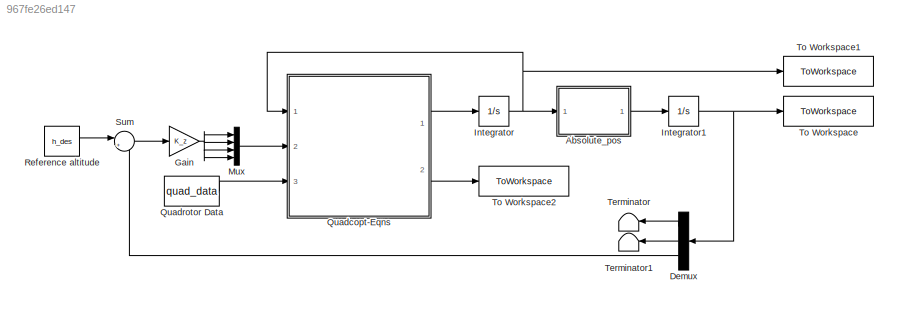
MODEL slx_967fe26ed147
KIND model
CONFIG AbsTol = auto
CONFIG EnableMultiTasking = off
CONFIG FixedStep = auto
CONFIG MaxStep = auto
CONFIG MinStep = auto
CONFIG RelTol = 1e-3
CONFIG SampleTimeConstraint = Unconstrained
CONFIG SolverName = VariableStepAuto
CONFIG StartTime = 0.0
CONFIG StopTime = 2
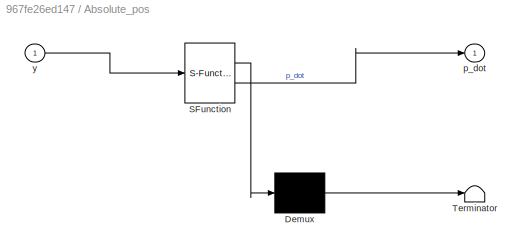
BLOCK [SubSystem] Absolute_pos
  ErrorFcn = Stateflow.Translate.translate
  PermitHierarchicalResolution = ExplicitOnly
  Ports = [1, 1]
  RequestExecContextInheritance = off
  SFBlockType = MATLAB Function
  TreatAsAtomicUnit = on
BLOCK [Demux] Absolute_pos/ Demux 
  Outputs = 1
  Ports = [1, 1]
BLOCK [S-Function] Absolute_pos/ SFunction 
  EnableBusSupport = on
  FunctionName = sf_sfun
  PortCounts = [1 2]
  Ports = [1, 2]
  SFcnIsStateOwnerBlock = off
  SFunctionDeploymentMode = off
  Tag = Stateflow S-Function 1
BLOCK [Terminator] Absolute_pos/ Terminator 
BLOCK [Outport] Absolute_pos/p_dot
BLOCK [Inport] Absolute_pos/y
BLOCK [Demux] Demux
  Outputs = 3
  Ports = [1, 3]
BLOCK [Gain] Gain
  Gain = K_z
BLOCK [Integrator] Integrator
  InitialCondition = y_init_conds
  Ports = [1, 1]
BLOCK [Integrator] Integrator1
  InitialCondition = [0 0 0]
  Ports = [1, 1]
BLOCK [Mux] Mux
  DisplayOption = bar
  Ports = [4, 1]
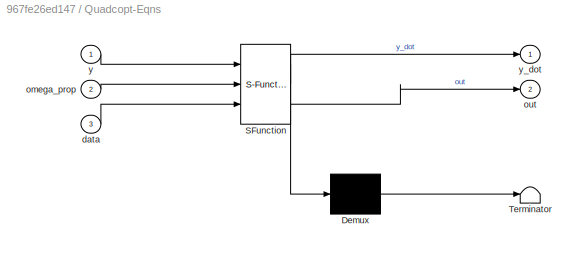
BLOCK [SubSystem] Quadcopt-Eqns
  ErrorFcn = Stateflow.Translate.translate
  PermitHierarchicalResolution = ExplicitOnly
  Ports = [3, 2]
  RequestExecContextInheritance = off
  SFBlockType = MATLAB Function
  TreatAsAtomicUnit = on
BLOCK [Demux] Quadcopt-Eqns/ Demux 
  Outputs = 1
  Ports = [1, 1]
BLOCK [S-Function] Quadcopt-Eqns/ SFunction 
  EnableBusSupport = on
  FunctionName = sf_sfun
  PortCounts = [3 3]
  Ports = [3, 3]
  SFcnIsStateOwnerBlock = off
  SFunctionDeploymentMode = off
  Tag = Stateflow S-Function 2
BLOCK [Terminator] Quadcopt-Eqns/ Terminator 
BLOCK [Inport] Quadcopt-Eqns/data
  Port = 3
BLOCK [Inport] Quadcopt-Eqns/omega_prop
  Port = 2
BLOCK [Outport] Quadcopt-Eqns/out
  Port = 2
BLOCK [Inport] Quadcopt-Eqns/y
BLOCK [Outport] Quadcopt-Eqns/y_dot
BLOCK [Constant] Quadrotor Data
  Value = quad_data
BLOCK [Constant] Reference altitude
  Value = h_des
BLOCK [Sum] Sum
  Inputs = |+-
  Ports = [2, 1]
BLOCK [Terminator] Terminator
BLOCK [Terminator] Terminator1
BLOCK [ToWorkspace] To Workspace
  FixptAsFi = on
  MaxDataPoints = inf
  Ports = [1]
  SampleTime = -1
  Save2DSignal = 2-D array (concatenate along first dimension)
  VariableName = pos
BLOCK [ToWorkspace] To Workspace1
  FixptAsFi = on
  MaxDataPoints = inf
  Ports = [1]
  SampleTime = -1
  Save2DSignal = 2-D array (concatenate along first dimension)
  VariableName = velocities
BLOCK [ToWorkspace] To Workspace2
  FixptAsFi = on
  MaxDataPoints = inf
  Ports = [1]
  SampleTime = -1
  Save2DSignal = 2-D array (concatenate along first dimension)
  VariableName = external_forces
LINE Absolute_pos:1 -> Integrator1:1
LINE Demux:1 -> Terminator:1
LINE Demux:2 -> Terminator1:1
LINE Demux:3 -> Sum:2
NET Gain:1 -> Mux:1, Mux:2, Mux:3, Mux:4
NET Integrator1:1 -> Demux:1, To Workspace:1
NET Integrator:1 -> Absolute_pos:1, Quadcopt-Eqns:1, To Workspace1:1
LINE Mux:1 -> Quadcopt-Eqns:2
LINE Quadcopt-Eqns:1 -> Integrator:1
LINE Quadcopt-Eqns:2 -> To Workspace2:1
LINE Quadrotor Data:1 -> Quadcopt-Eqns:3
LINE Reference altitude:1 -> Sum:1
LINE Sum:1 -> Gain:1
note: NET lines group one-source signal fan-out (src -> all destinations, sorted); 1:1 wires keep LINE
CHART Absolute_pos states=1 transitions=1
  STATE_LABEL 'eML_blk_kernel()'
  STATE_LABEL 'SCRIPT:\nfunction p_dot = fcn(y)\n    \n    % Remapping================================\n    u       = y(1);\n    v       = y(2);\n    w       = y(3);\n    omega_x = y(4);\n    omega_y = y(5);\n    omega_z = y(6);\n    phi     = y(7);\n    theta   = y(8);\n    psi     = y(9);\n    \n    %ode for absolute position (rhs)\n    p_dot = [ ((sin(phi)*v + w*cos(phi))*sin(theta) + cos(theta)*u)*cos(psi) + sin(psi)*(sin(...<+244ch>'
CHART Quadcopt-Eqns states=1 transitions=1
  STATE_LABEL 'eML_blk_kernel()'
  STATE_LABEL "SCRIPT:\nfunction [y_dot,out] = fcn(y,omega_prop,data)\n\n    % y' = y_dot = rhs(y,u)\n    % y = [u,v,w,omega_x,omega_y,omega_z,phi,theta,psi]\n    % y(1) = u ....\n\n    % Extract data from vector\n    g   = data(1);\n    m   = data(2);\n    ixx = data(3);\n    iyy = data(4);\n    izz = data(5);\n    L   = data(6);\n    CT  = data(7);\n    CQ  = data(8);\n    rho = data(9);\n        \n    % Remapping==============...<+1648ch>"
CHART  states=0 transitions=0
CHART  states=0 transitions=0
